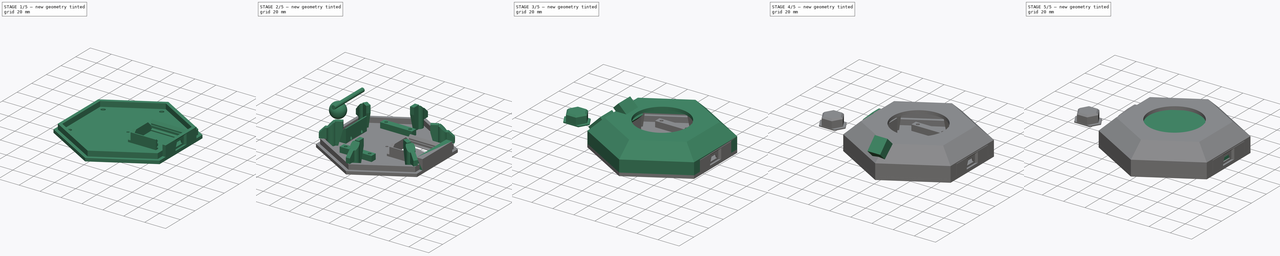
[diagram: build sequence overview — one tinted view per stage of 5, left to right]
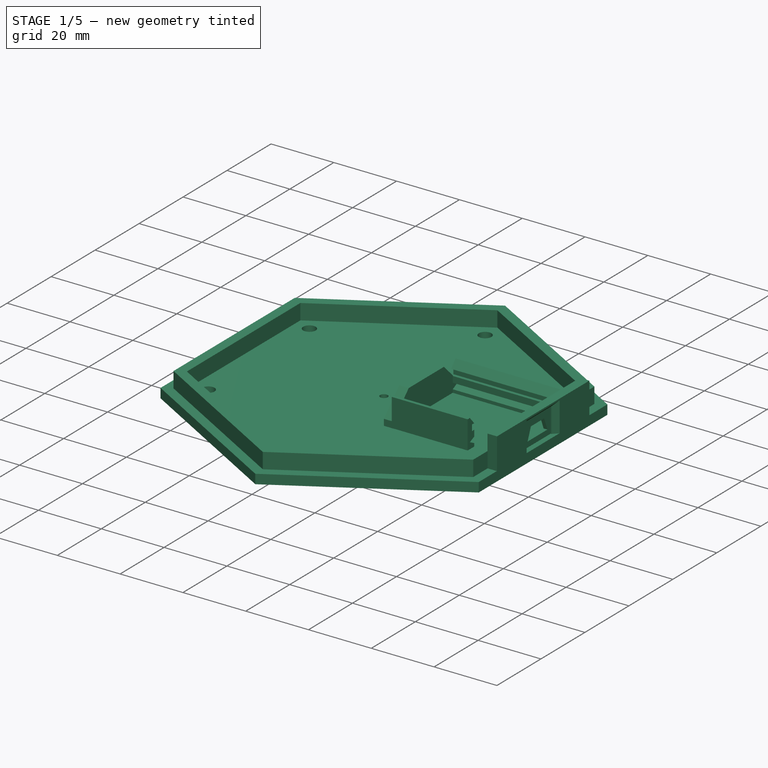
[diagram: stage 1 of 5 — iso view after this stage's code; geometry added in this stage tinted green]
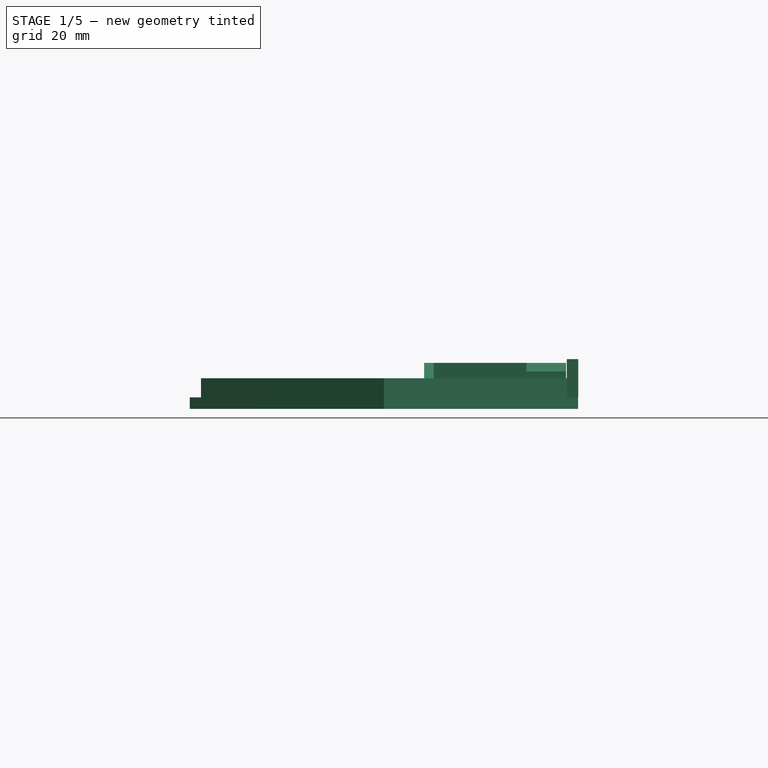
[diagram: stage 1 of 5 — front view after this stage's code; geometry added in this stage tinted green]
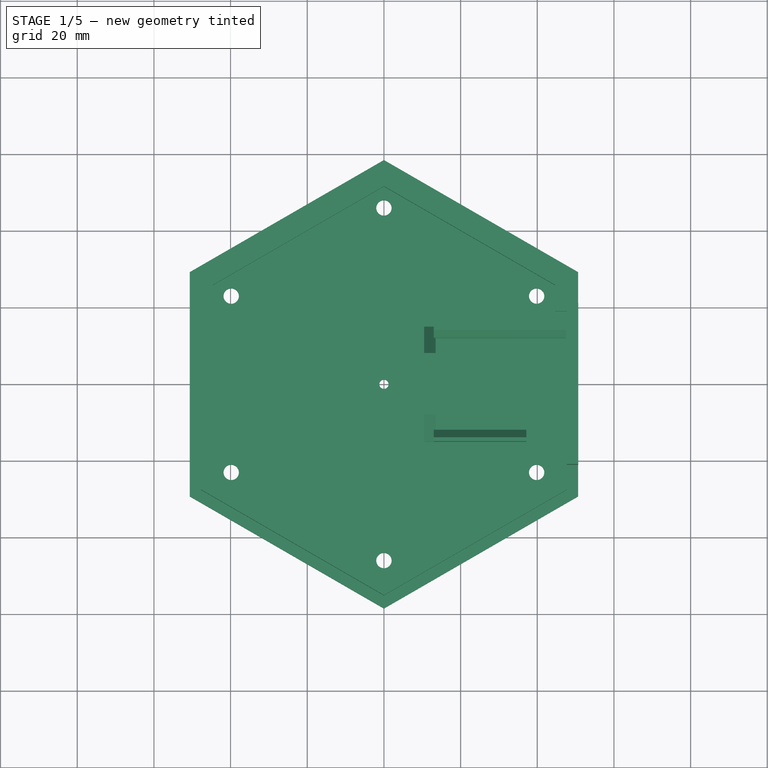
[diagram: stage 1 of 5 — top view after this stage's code; geometry added in this stage tinted green]
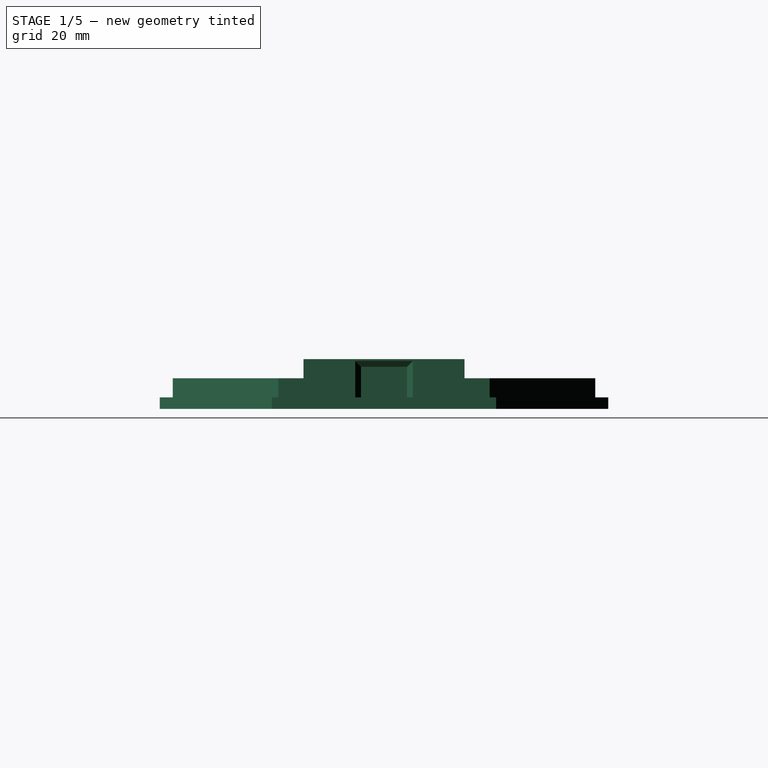
[diagram: stage 1 of 5 — right view after this stage's code; geometry added in this stage tinted green]
FCSTD DOCUMENT  (FreeCAD 0.17R13541 (Git))
Label: sycrolights_base
License: All rights reserved
LicenseURL: http://en.wikipedia.org/wiki/All_rights_reserved
objects: Part::Box×33, Part::Cut×29, Part::MultiFuse×23, Part::Cylinder×18, Part::Chamfer×12, Part::Prism×11, Sketcher::SketchObject×9, PartDesign::Body×9, PartDesign::Pad×8, Part::FeaturePython×6, Part::Thickness×2, Part::Fillet×1, Part::Extrusion×1, Part::Feature×1, Part::Sphere×1
note: 172 computed .brp shape members not serialized (recipe doc carries the construction recipe); baked Part::Feature solids carry a one-line shape summary decoded from their .brp

FEATURE [Sketcher::SketchObject] Sketch002
  MapMode = 5
  Placement = pos=(0,0,0) rot=(0.57735,0.57735,0.57735;2.0944rad)
  Support = -> [YZ_Plane002]
  sketch-geometry (11):
    g0: LineSegment StartX=13 StartY=6.74601 StartZ=0 EndX=13 EndY=4.83955 EndZ=0
    g1: LineSegment StartX=13 StartY=4.83955 StartZ=0 EndX=12 EndY=4.83955 EndZ=0
    g2: LineSegment StartX=12 StartY=4.83955 StartZ=0 EndX=12 EndY=2.88467 EndZ=0
    g3: LineSegment StartX=12 StartY=2.88467 StartZ=0 EndX=14 EndY=1.99839 EndZ=0
    g4: LineSegment StartX=14 StartY=1.99839 StartZ=0 EndX=12 EndY=1 EndZ=0
    g5: LineSegment StartX=12 StartY=1 StartZ=0 EndX=12 EndY=0 EndZ=0
    g6: LineSegment StartX=12 StartY=0 StartZ=0 EndX=15 EndY=0.028037 EndZ=0
    g7: LineSegment StartX=15 StartY=0.028037 StartZ=0 EndX=15 EndY=8.99601 EndZ=0
    g8: LineSegment StartX=15 StartY=8.99601 StartZ=0 EndX=14 EndY=8.99601 EndZ=0
    g9: LineSegment StartX=14 StartY=8.99601 StartZ=0 EndX=12 EndY=6.74601 EndZ=0
    g10: LineSegment StartX=12 StartY=6.74601 StartZ=0 EndX=13 EndY=6.74601 EndZ=0
  constraints (26):
    c: DistanceX(g10,g10) = 1
    c: Coincident(g10,g9)
    c: DistanceX(g-1,g9) = 12
    c: Coincident(g0,g10)
    c: Vertical(g0)
    c: Horizontal(g10)
    c: Coincident(g1,g0)
    c: Coincident(g2,g1)
    c: Horizontal(g1)
    c: DistanceX(g1,g1) = 1
    c: Vertical(g2)
    c: Coincident(g2,g3)
    c: Coincident(g4,g3)
    c: DistanceX(g3,g6) = 1
    c: DistanceX(g5,g6) = 3
    c: Vertical(g7)
    c: Coincident(g7,g8)
    c: Horizontal(g8)
    c: Coincident(g9,g8)
    c: DistanceX(g8,g8) = 1
    c: Coincident(g7,g6)
    c: Coincident(g6,g5)
    c: Vertical(g5)
    c: DistanceX(g0,g8) = 1
    c: Coincident(g5,g4)
    c: DistanceY(g5,g4) = 1
FEATURE [PartDesign::Pad] Pad002
  Length = 34.5
  Length2 = 100
  Placement = pos=(0,0,0) rot=(0.57735,0.57735,0.57735;2.0944rad)
  Profile = -> Sketch002
  Type = 0
FEATURE [PartDesign::Body] Body002
  Group = -> [Sketch002,Pad002]
  Origin = -> Origin002
  Placement = pos=(13,0,0) rot=(0,0,1;0rad)
  Tip = -> Pad002
FEATURE [Part::FeaturePython] Clone  label="Pad003"  # Draft clone (typed FeaturePython)
  AttacherType = Attacher::AttachEngine3D
  Fuse = false
  Objects = -> [Pad002]
  Placement = pos=(13,0,0) rot=(0.57735,0.57735,0.57735;2.0944rad)
  Scale = (-1,1,0.7)
FEATURE [Part::Prism] Prism002  label="tapa"
  AttacherType = Attacher::AttachEngine3D
  Circumradius = 58.5
  Height = 3
  Placement = pos=(0,0,-3) rot=(0,0,1;0.523599rad)
  Polygon = 6
FEATURE [Part::Box] Box008  label="Cubo005"
  AttacherType = Attacher::AttachEngine3D
  Height = 9
  Length = 3
  Placement = pos=(10,-15,0) rot=(0,0,1;0rad)
  Width = 30
FEATURE [Part::Chamfer] Chamfer002  label="tope"
  Base = -> Box008
  Edges = 2 edges r=7: [Edge10,Edge12]
  Placement = pos=(0.5,0,0) rot=(0,0,1;0rad)
FEATURE [Part::Box] Box009  label="Cubo006"
  AttacherType = Attacher::AttachEngine3D
  Height = 10
  Length = 3
  Placement = pos=(47.7,-21,0) rot=(0,0,1;0rad)
  Width = 42
FEATURE [Part::Prism] Prism003  label="tapa001"
  AttacherType = Attacher::AttachEngine3D
  Circumradius = 55.1
  Height = 5
  Placement = pos=(0,0,0) rot=(0,0,1;0.523599rad)
  Polygon = 6
FEATURE [Part::Prism] Prism004  label="tapa002"
  AttacherType = Attacher::AttachEngine3D
  Circumradius = 51.6
  Height = 11
  Placement = pos=(0,0,0) rot=(0,0,1;0.523599rad)
  Polygon = 6
FEATURE [Part::Cut] Cut006
  Base = -> Prism003
  Tool = -> Prism004
FEATURE [Part::Box] Box010  label="Cubo007"
  AttacherType = Attacher::AttachEngine3D
  Height = 10
  Length = 5
  Placement = pos=(43.7,-19,0) rot=(0,0,1;0rad)
  Width = 38
FEATURE [Part::Cut] Cut007  label="reborde1"
  Base = -> Cut006
  Tool = -> Box010
FEATURE [Part::Box] Box012  label="Cubo009"
  AttacherType = Attacher::AttachEngine3D
  Height = 8
  Length = 10
  Placement = pos=(44,-6,0) rot=(0,0,1;0rad)
  Width = 12
FEATURE [Part::Cut] Cut008  label="tapa usb"
  Base = -> Box009
  Tool = -> Box012
FEATURE [Sketcher::SketchObject] Sketch005
  MapMode = 5
  Placement = pos=(0,0,0) rot=(0.57735,0.57735,0.57735;2.0944rad)
  Support = -> [YZ_Plane005]
  sketch-geometry (4):
    g0: LineSegment StartX=-3 StartY=0.536587 StartZ=0 EndX=3 EndY=0.536587 EndZ=0
    g1: LineSegment StartX=3 StartY=0.536587 StartZ=0 EndX=4.5 EndY=-3.26341 EndZ=0
    g2: LineSegment StartX=4.5 StartY=-3.26341 StartZ=0 EndX=-4.5 EndY=-3.26341 EndZ=0
    g3: LineSegment StartX=-4.5 StartY=-3.26341 StartZ=0 EndX=-3 EndY=0.536587 EndZ=0
  constraints (11):
    c: Coincident(g0,g1)
    c: Coincident(g1,g2)
    c: Coincident(g2,g3)
    c: Coincident(g3,g0)
    c: Horizontal(g0)
    c: Horizontal(g2)
    c: Symmetric(g0,g0,g-2)
    c: Symmetric(g2,g1,g-2)
    c: DistanceX(g2,g1) = 9
    c: DistanceX(g0,g0) = 6
    c: DistanceY(g1,g0) = 3.8
FEATURE [PartDesign::Pad] Pad005  label="Pad006"
  Length = 5.62
  Length2 = 100
  Placement = pos=(0,0,0) rot=(0.57735,0.57735,0.57735;2.0944rad)
  Profile = -> Sketch005
  Type = 0
FEATURE [PartDesign::Body] Body005  label="agujero microusb001"
  Group = -> [Sketch005,Pad005]
  Origin = -> Origin005
  Placement = pos=(45.85,0,5) rot=(0,0,1;0rad)
  Tip = -> Pad005
FEATURE [Part::Box] Box014  label="Cubo011"
  AttacherType = Attacher::AttachEngine3D
  Height = 10
  Length = 1.2
  Placement = pos=(47.7,-21,0) rot=(0,0,1;0rad)
  Width = 42
FEATURE [Part::Cut] Cut010
  Base = -> Box014
  Tool = -> Body005
FEATURE [Part::MultiFuse] Fusion003
  Shapes = -> [Cut008,Cut010]
FEATURE [Part::Chamfer] Chamfer  label="tapa usb001"
  Base = -> Fusion003
  Edges = 3 edges r=1.5: [Edge45,Edge46,Edge47]
FEATURE [Part::Cylinder] Cylinder043  label="Cilindro019"
  Angle = 360
  AttacherType = Attacher::AttachEngine3D
  Height = 10
  Placement = pos=(0,0,-6) rot=(0,0,1;0rad)
  Radius = 1.2
FEATURE [Part::Cut] Cut011  label="tapa con agujero pulsaor"
  Base = -> Prism002
  Tool = -> Cylinder043
FEATURE [Part::MultiFuse] Fusion006  label="tapa inferior con reborde"
  Shapes = -> [Cut007,Cut011]
FEATURE [Part::MultiFuse] Fusion008  label="soporte wemos"
  Shapes = -> [Body002,Clone,Chamfer002]
FEATURE [Part::Box] Box027  label="Cubo023"
  AttacherType = Attacher::AttachEngine3D
  Height = 2.5
  Length = 11
  Placement = pos=(37.5,-11,4.5) rot=(0,0,1;0rad)
  Width = 7
FEATURE [Part::Box] Box028  label="Cubo024"
  AttacherType = Attacher::AttachEngine3D
  Height = 2.5
  Length = 11
  Placement = pos=(37.5,4,4.5) rot=(0,0,1;0rad)
  Width = 9.5
FEATURE [Part::MultiFuse] Fusion009
  Shapes = -> [Box027,Box028]
FEATURE [Part::Cut] Cut013  label="tapa usb002"
  Base = -> Chamfer
  Tool = -> Fusion009
FEATURE [Part::Cylinder] Cylinder050  label="Cilindro026"
  Angle = 360
  AttacherType = Attacher::AttachEngine3D
  Height = 21
  Placement = pos=(0,-46,-8) rot=(0,0,1;0rad)
  Radius = 2
FEATURE [Part::FeaturePython] Array002  label="agujeros tornillos tapa inferior"  # Draft array (typed FeaturePython)
  Angle = 360
  ArrayType = 1
  Axis = (0,0,1)
  Base = -> Cylinder050
  Center = (0,0,0)
  Fuse = false
  IntervalAxis = (0,0,0)
  IntervalX = (1,0,0)
  IntervalY = (0,1,0)
  IntervalZ = (0,0,0)
  NumberPolar = 6
  NumberX = 2
  NumberY = 2
  NumberZ = 1
FEATURE [Part::Cut] Cut021  label="tapa inferior con agujeros tornillos"
  Base = -> Fusion006
  Tool = -> Array002
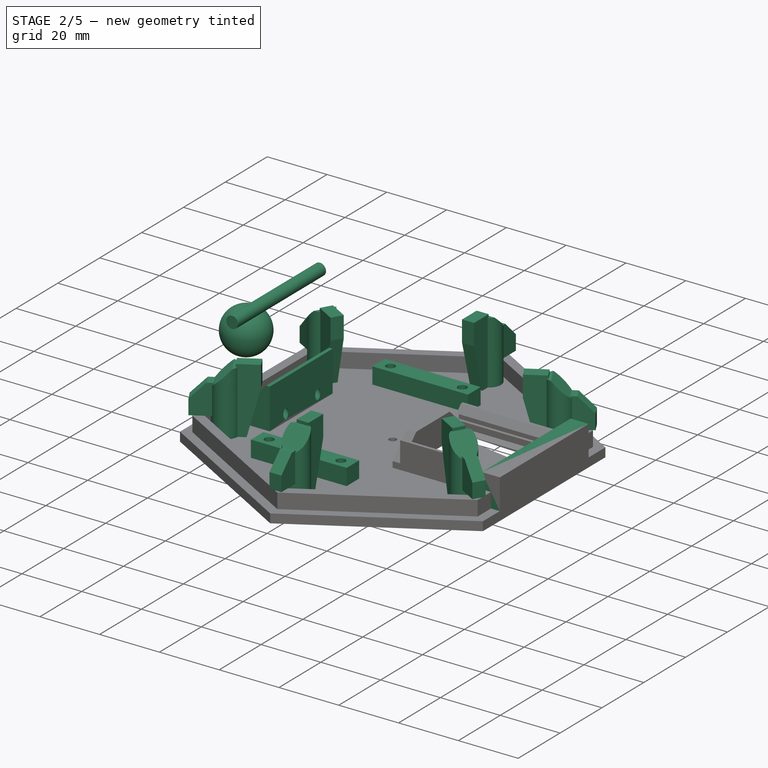
[diagram: stage 2 of 5 — iso view after this stage's code; geometry added in this stage tinted green]
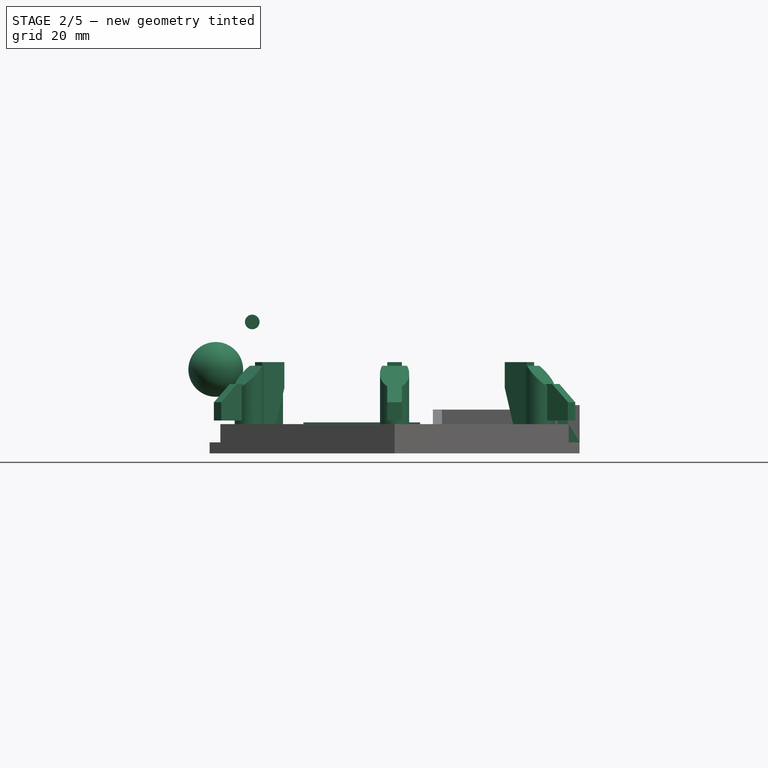
[diagram: stage 2 of 5 — front view after this stage's code; geometry added in this stage tinted green]
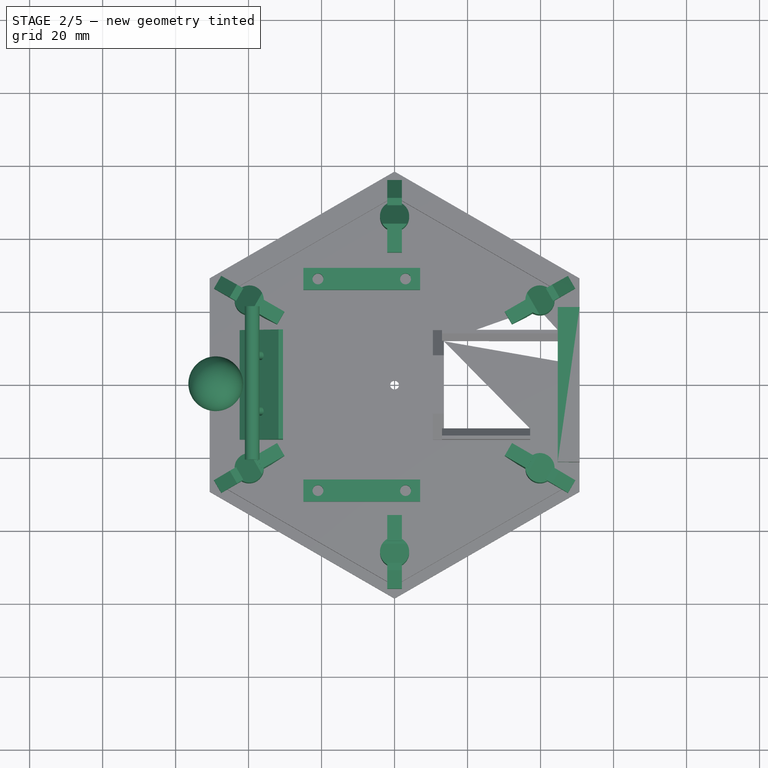
[diagram: stage 2 of 5 — top view after this stage's code; geometry added in this stage tinted green]
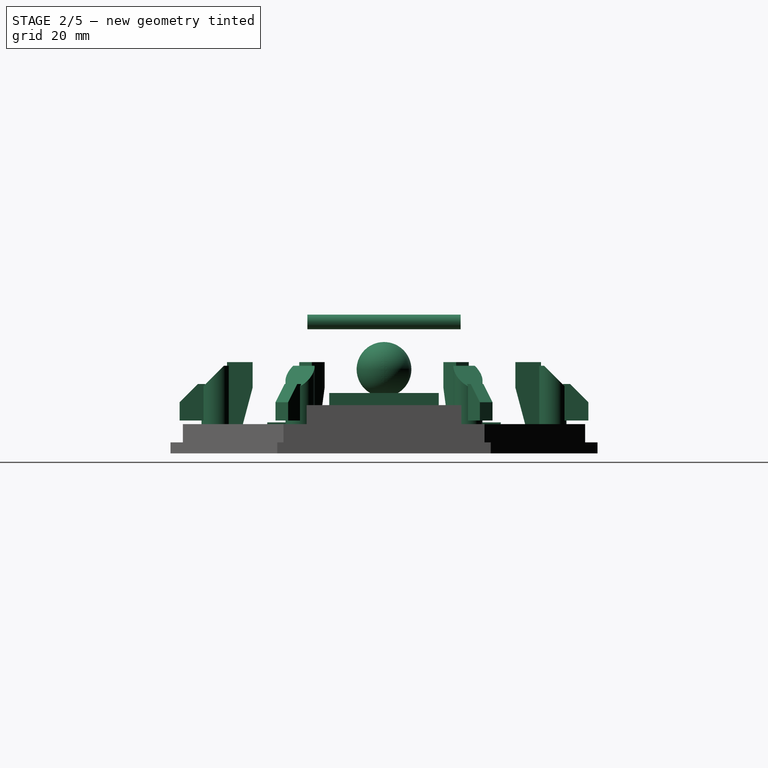
[diagram: stage 2 of 5 — right view after this stage's code; geometry added in this stage tinted green]
FEATURE [Sketcher::SketchObject] Sketch006
  MapMode = 5
  Placement = pos=(0,0,0) rot=(1,0,0;1.5708rad)
  Support = -> [XZ_Plane006]
  sketch-geometry (5):
    g0: LineSegment StartX=-43.9497 StartY=0 StartZ=0 EndX=-43.9497 EndY=2.87613 EndZ=0
    g1: LineSegment StartX=-43.9497 StartY=2.87613 StartZ=0 EndX=-33.298 EndY=13.5279 EndZ=0
    g2: LineSegment StartX=-33.298 StartY=13.5279 StartZ=0 EndX=-32.0837 EndY=13.5279 EndZ=0
    g3: LineSegment StartX=-32.0837 StartY=13.5279 StartZ=0 EndX=-32.0837 EndY=0 EndZ=0
    g4: LineSegment StartX=-32.0837 StartY=0 StartZ=0 EndX=-43.9497 EndY=0 EndZ=0
  constraints (11):
    c: Vertical(g0)
    c: Coincident(g0,g1)
    c: Coincident(g1,g2)
    c: Horizontal(g2)
    c: Coincident(g2,g3)
    c: Vertical(g3)
    c: Coincident(g3,g4)
    c: Coincident(g4,g0)
    c: Horizontal(g4)
    c: PointOnObject(g0,g-1)
    c: Angle(g0,g1) = 2.35619
FEATURE [PartDesign::Body] Body006
  Group = -> [Sketch006]
  Origin = -> Origin006
FEATURE [Part::Extrusion] Extrude  label="soporte pulsador"
  Base = -> Sketch006
  Dir = (0,-1,0)
  DirMode = 2
  FaceMakerClass = Part::FaceMakerBullseye
  LengthFwd = 30
  LengthRev = 0
  Placement = pos=(0,15,0) rot=(0,0,1;0rad)
  Solid = true
  Symmetric = false
FEATURE [Part::Cylinder] Cylinder044  label="Cilindro020"
  Angle = 360
  AttacherType = Attacher::AttachEngine3D
  Height = 30
  Radius = 1.2
FEATURE [Part::Cylinder] Cylinder045  label="Cilindro021"
  Angle = 360
  AttacherType = Attacher::AttachEngine3D
  Height = 30
  Placement = pos=(0,15.24,0) rot=(0,0,1;0rad)
  Radius = 1.2
FEATURE [Part::MultiFuse] Fusion007
  Placement = pos=(-24.62,-7.35,-5) rot=(0,-1,0;0.785398rad)
  Shapes = -> [Cylinder045,Cylinder044]
FEATURE [Part::Cut] Cut012  label="soporte pulsador con agujeros"
  Base = -> Extrude
  Placement = pos=(1.5,0,0) rot=(0,0,1;0rad)
  Tool = -> Fusion007
FEATURE [Part::Box] Box037  label="Cubo033"
  AttacherType = Attacher::AttachEngine3D
  Height = 5.5
  Length = 32
  Placement = pos=(-22,-32,0) rot=(0,0,1;0rad)
  Width = 6
FEATURE [Part::Cylinder] Cylinder048  label="Cilindro024"
  Angle = 360
  AttacherType = Attacher::AttachEngine3D
  Height = 10
  Placement = pos=(-18,-29,0) rot=(0,0,1;0rad)
  Radius = 1.5
FEATURE [Part::Cylinder] Cylinder049  label="Cilindro025"
  Angle = 360
  AttacherType = Attacher::AttachEngine3D
  Height = 10
  Placement = pos=(6,-29,0) rot=(0,0,1;0rad)
  Radius = 1.5
FEATURE [Part::MultiFuse] Fusion017
  Shapes = -> [Cylinder048,Cylinder049]
FEATURE [Part::Cut] Cut020
  Base = -> Box037
  Placement = pos=(-3,0,0) rot=(0,0,1;0rad)
  Tool = -> Fusion017
FEATURE [Part::MultiFuse] Fusion018
  Shapes = -> [Cut021,Cut012,Fusion008,Cut013]
FEATURE [Part::Cylinder] Cylinder053  label="bisagra (eliminado)001"
  Angle = 360
  AttacherType = Attacher::AttachEngine3D
  Height = 42
  Placement = pos=(-39,21,33) rot=(1,0,0;1.5708rad)
  Radius = 2
FEATURE [Part::Box] Box038  label="Cubo034"
  AttacherType = Attacher::AttachEngine3D
  Height = 10.2
  Length = 6
  Placement = pos=(44.7,-21.2,0) rot=(0,0,1;0rad)
  Width = 42.4
FEATURE [Part::Cylinder] Cylinder054  label="Cilindro027"
  Angle = 360
  AttacherType = Attacher::AttachEngine3D
  Height = 21
  Placement = pos=(0,-46,0) rot=(0,0,1;0rad)
  Radius = 4
FEATURE [Part::Box] Box039  label="Cubo035"
  AttacherType = Attacher::AttachEngine3D
  Height = 14
  Length = 12
  Placement = pos=(-7,-59,20) rot=(-1,0,0;0.785398rad)
  Width = 10
FEATURE [Part::Cut] Cut027
  Base = -> Cylinder054
  Tool = -> Box039
FEATURE [Part::Box] Box040  label="Cubo036"
  AttacherType = Attacher::AttachEngine3D
  Height = 22
  Length = 4
  Placement = pos=(-2,-43,0) rot=(0,0,1;0rad)
  Width = 7
FEATURE [Part::Chamfer] Chamfer009
  Base = -> Box040
  Edges = 1 edges: [Edge11 r1=15 r2=4]
FEATURE [Part::Box] Box041  label="Cubo037"
  AttacherType = Attacher::AttachEngine3D
  Height = 10
  Length = 4
  Placement = pos=(-2,-56,6) rot=(0,0,1;0rad)
  Width = 7
FEATURE [Part::Chamfer] Chamfer010
  Base = -> Box041
  Edges = 1 edges r=5: [Edge10]
FEATURE [Part::Cylinder] Cylinder055  label="Cilindro028"
  Angle = 360
  AttacherType = Attacher::AttachEngine3D
  Height = 15
  Placement = pos=(0,-46,0) rot=(0,0,1;0rad)
  Radius = 1.5
FEATURE [Part::MultiFuse] Fusion020
  Shapes = -> [Chamfer010,Chamfer009,Cut027]
FEATURE [Part::Cut] Cut028  label="tornillo001"
  Base = -> Fusion020
  Tool = -> Cylinder055
FEATURE [Part::FeaturePython] Array003  label="soportes tornillos001"  # Draft array (typed FeaturePython)
  Angle = 360
  ArrayType = 1
  Axis = (0,0,1)
  Base = -> Cut028
  Center = (0,0,0)
  Fuse = false
  IntervalAxis = (0,0,0)
  IntervalX = (1,0,0)
  IntervalY = (0,1,0)
  IntervalZ = (0,0,0)
  NumberPolar = 6
  NumberX = 2
  NumberY = 2
  NumberZ = 1
FEATURE [Part::Sphere] Sphere  label="Esfera"
  Angle1 = -90
  Angle2 = 90
  Angle3 = 360
  AttacherType = Attacher::AttachEngine3D
  Placement = pos=(-49,0,20) rot=(0,0,1;0rad)
  Radius = 7.5
FEATURE [Part::FeaturePython] Clone001  label="Cut030"  # Draft clone (typed FeaturePython)
  AttacherType = Attacher::AttachEngine3D
  Fuse = false
  Objects = -> [Cut020]
  Placement = pos=(-3,58,0) rot=(0,0,1;0rad)
  Scale = (1,1,1)
FEATURE [Part::MultiFuse] Fusion022  label="soporte plaqueta"
  Shapes = -> [Clone001,Cut020]
FEATURE [Part::Chamfer] Chamfer011
  Base = -> Fusion018
  Edges = 6 edges r=2.5: [Edge18,Edge20,Edge21,Edge22,Edge23,Edge24]
FEATURE [Part::MultiFuse] Fusion023  label="inferior final"
  Shapes = -> [Fusion022,Chamfer011]
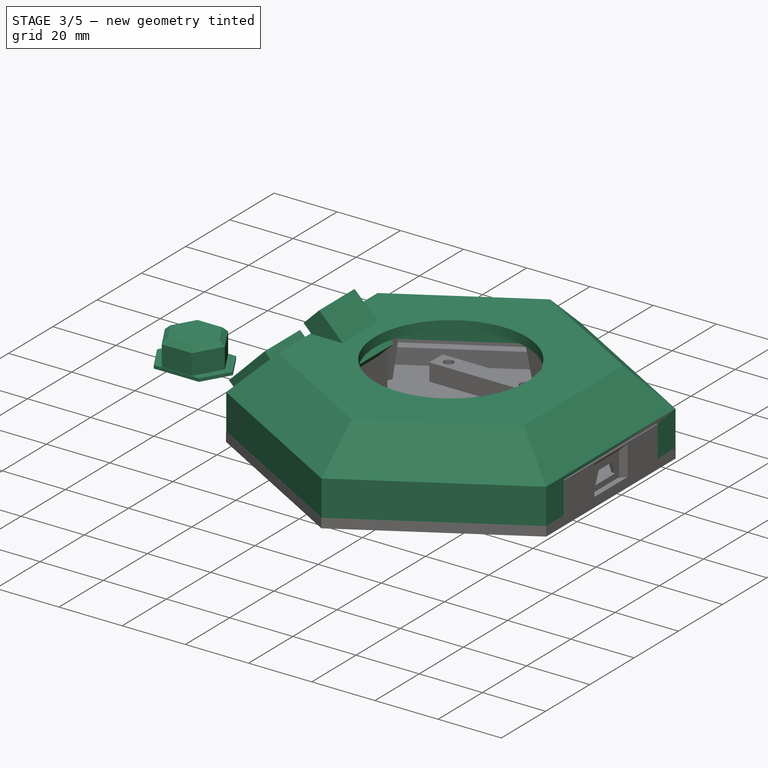
[diagram: stage 3 of 5 — iso view after this stage's code; geometry added in this stage tinted green]
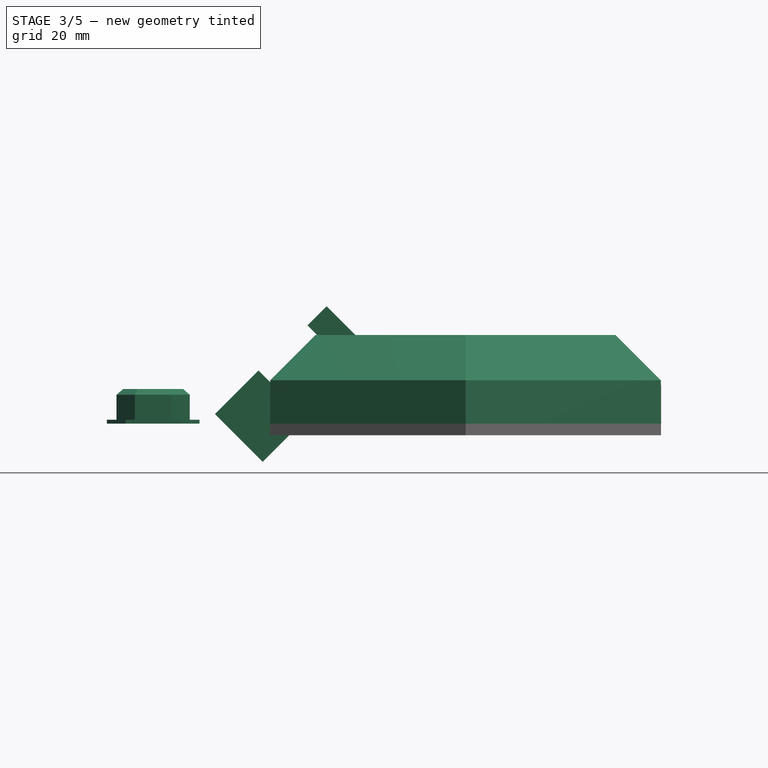
[diagram: stage 3 of 5 — front view after this stage's code; geometry added in this stage tinted green]
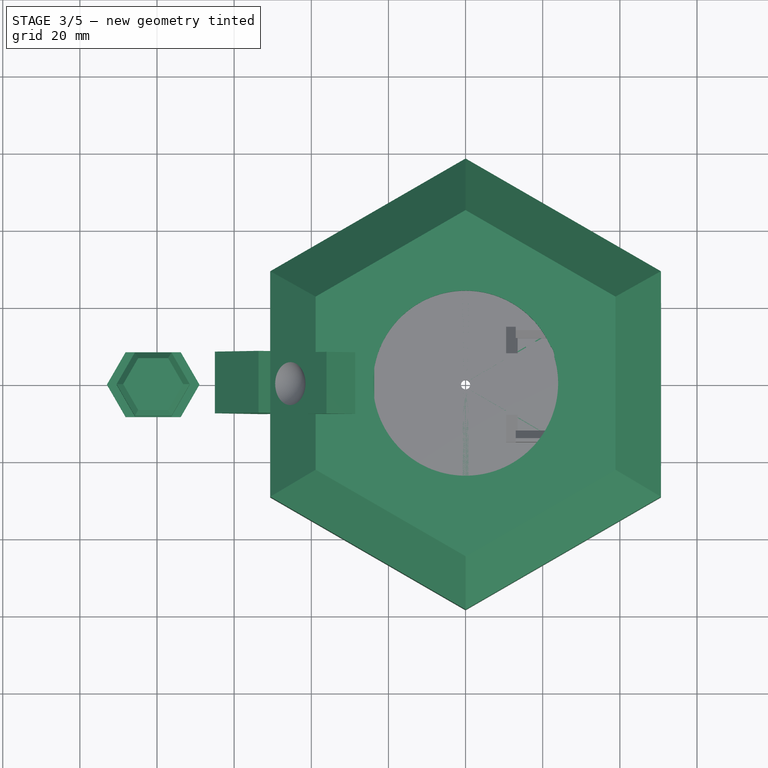
[diagram: stage 3 of 5 — top view after this stage's code; geometry added in this stage tinted green]
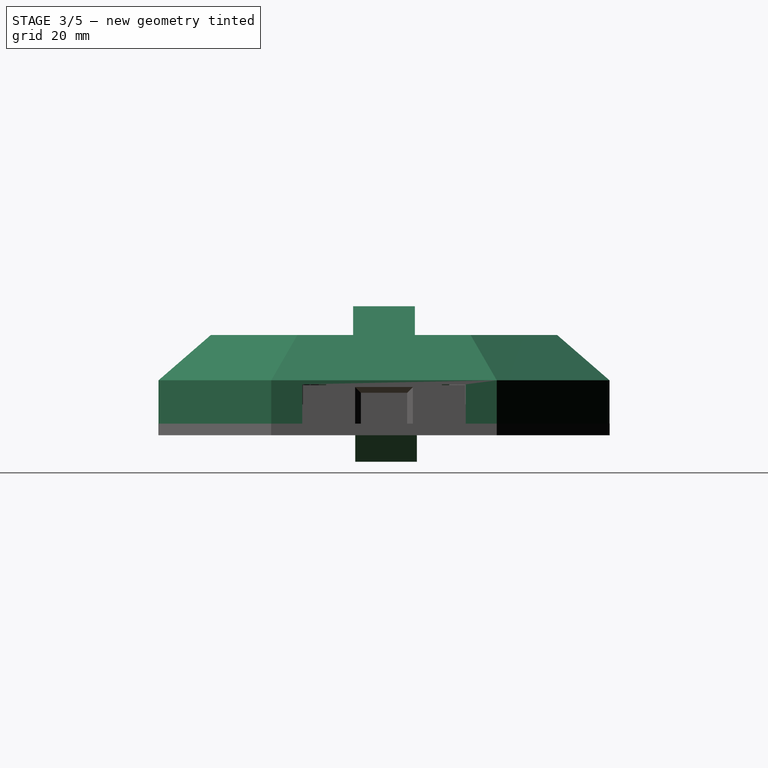
[diagram: stage 3 of 5 — right view after this stage's code; geometry added in this stage tinted green]
FEATURE [Part::Box] Box033  label="Cubo029"
  AttacherType = Attacher::AttachEngine3D
  Height = 7
  Length = 17.5
  Placement = pos=(-41,-8,25.5) rot=(0,1,0;0.785398rad)
  Width = 16
FEATURE [Part::Box] Box034  label="Cubo030"
  AttacherType = Attacher::AttachEngine3D
  Height = 16
  Length = 17.5
  Placement = pos=(-65,-7.46556,2.49185) rot=(0,1,0;0.785398rad)
  Width = 16
FEATURE [Part::MultiFuse] Fusion013
  Shapes = -> [Box034,Box033]
FEATURE [Part::Prism] Prism009  label="Prisma006"
  AttacherType = Attacher::AttachEngine3D
  Circumradius = 9.5
  Height = 9
  Polygon = 6
FEATURE [Part::Prism] Prism010  label="Prisma007"
  AttacherType = Attacher::AttachEngine3D
  Circumradius = 12
  Height = 1
  Polygon = 6
FEATURE [Part::Prism] Prism011  label="Prisma008"
  AttacherType = Attacher::AttachEngine3D
  Circumradius = 7.5
  Height = 2
  Polygon = 6
FEATURE [Part::MultiFuse] Fusion015
  Shapes = -> [Prism009,Prism010]
FEATURE [Part::Cut] Cut018
  Base = -> Fusion015
  Placement = pos=(-81,0,0) rot=(0,0,1;0rad)
  Tool = -> Prism011
FEATURE [Part::Box] Box035  label="Cubo031"
  AttacherType = Attacher::AttachEngine3D
  Height = 10
  Length = 26
  Placement = pos=(-95,8.4,0) rot=(0,0,1;0rad)
  Width = 10
FEATURE [Part::Box] Box036  label="Cubo032"
  AttacherType = Attacher::AttachEngine3D
  Height = 10
  Length = 26
  Placement = pos=(-95,-18.4,0) rot=(0,0,1;0rad)
  Width = 10
FEATURE [Part::MultiFuse] Fusion016
  Shapes = -> [Box035,Box036]
FEATURE [Part::Cut] Cut019
  Base = -> Cut018
  Tool = -> Fusion016
FEATURE [Part::Chamfer] Chamfer006
  Base = -> Cut019
  Edges = 6 edges r=1.5: [Edge50,Edge52,Edge55,Edge56,Edge59,Edge60]
FEATURE [Part::Chamfer] Chamfer007  label="tapa inferior con chanfler tornillos"
  Base = -> Cut021
  Edges = 6 edges r=2.5: [Edge14,Edge16,Edge17,Edge18,Edge19,Edge20]
FEATURE [Part::Prism] Prism012  label="Prisma009"
  AttacherType = Attacher::AttachEngine3D
  Circumradius = 55
  Height = 20
  Placement = pos=(0,0,0) rot=(0,0,1;0.523599rad)
  Polygon = 6
FEATURE [Part::Chamfer] Chamfer008
  Base = -> Prism012
  Edges = 6 edges r=10: [Edge4,Edge7,Edge10,Edge13,Edge16,Edge18]
FEATURE [Part::Thickness] Thickness001
  Faces = -> Chamfer008 [Face4]
  Intersection = false
  Join = 2
  Mode = 0
  SelfIntersection = false
  Value = 3
FEATURE [Sketcher::SketchObject] Sketch007
  MapMode = 5
  Placement = pos=(0,0,0) rot=(0.57735,0.57735,0.57735;2.0944rad)
  Support = -> [YZ_Plane007]
  sketch-geometry (4):
    g0: LineSegment StartX=-3 StartY=0.536587 StartZ=0 EndX=3 EndY=0.536587 EndZ=0
    g1: LineSegment StartX=3 StartY=0.536587 StartZ=0 EndX=4.5 EndY=-3.26341 EndZ=0
    g2: LineSegment StartX=4.5 StartY=-3.26341 StartZ=0 EndX=-4.5 EndY=-3.26341 EndZ=0
    g3: LineSegment StartX=-4.5 StartY=-3.26341 StartZ=0 EndX=-3 EndY=0.536587 EndZ=0
  constraints (11):
    c: Coincident(g0,g1)
    c: Coincident(g1,g2)
    c: Coincident(g2,g3)
    c: Coincident(g3,g0)
    c: Horizontal(g0)
    c: Horizontal(g2)
    c: Symmetric(g0,g0,g-2)
    c: Symmetric(g2,g1,g-2)
    c: DistanceX(g2,g1) = 9
    c: DistanceX(g0,g0) = 6
    c: DistanceY(g1,g0) = 3.8
FEATURE [PartDesign::Pad] Pad006  label="Pad007"
  Length = 5.62
  Length2 = 100
  Placement = pos=(0,0,0) rot=(0.57735,0.57735,0.57735;2.0944rad)
  Profile = -> Sketch007
  Type = 0
FEATURE [PartDesign::Body] Body007  label="agujero microusb002"
  Group = -> [Sketch007,Pad006]
  Origin = -> Origin007
  Placement = pos=(45.85,0,5) rot=(0,0,1;0rad)
  Tip = -> Pad006
FEATURE [Part::Cut] Cut022
  Base = -> Thickness001
  Tool = -> Body007
FEATURE [Part::Cylinder] Cylinder051  label="agujero led builtin001"
  Angle = 360
  AttacherType = Attacher::AttachEngine3D
  Height = 44
  Placement = pos=(19,7,0) rot=(0,0,1;0rad)
  Radius = 4
FEATURE [Part::Cylinder] Cylinder052  label="agujero cables001"
  Angle = 360
  AttacherType = Attacher::AttachEngine3D
  Height = 44
  Radius = 24
FEATURE [Part::MultiFuse] Fusion019
  Shapes = -> [Cylinder052,Cylinder051]
FEATURE [Part::Cut] Cut023  label="con agujeros001"
  Base = -> Cut022
  Tool = -> Fusion019
FEATURE [Sketcher::SketchObject] Sketch008
  MapMode = 5
  Support = -> [XY_Plane008]
  sketch-geometry (7):
    g0: LineSegment StartX=-40.8761 StartY=10 StartZ=0 EndX=-49.5363 EndY=5 EndZ=0
    g1: LineSegment StartX=-49.5363 StartY=5 StartZ=0 EndX=-49.5363 EndY=-5 EndZ=0
    g2: LineSegment StartX=-49.5363 StartY=-5 StartZ=0 EndX=-40.8761 EndY=-10 EndZ=0
    g3: LineSegment StartX=-40.8761 StartY=-10 StartZ=0 EndX=-32.2158 EndY=-5 EndZ=0
    g4: LineSegment StartX=-32.2158 StartY=-5 StartZ=0 EndX=-32.2158 EndY=5 EndZ=0
    g5: LineSegment StartX=-32.2158 StartY=5 StartZ=0 EndX=-40.8761 EndY=10 EndZ=0
    g6: Circle [constr] CenterX=-40.8761 CenterY=0 CenterZ=0 NormalX=0 NormalY=0 NormalZ=1 AngleXU=0 Radius=10
  constraints (16):
    c: Coincident(g0,g1)
    c: Coincident(g1,g2)
    c: Coincident(g2,g3)
    c: Coincident(g3,g4)
    c: Coincident(g4,g5)
    c: Coincident(g5,g0)
    c: Equal(g0, g1-g5) x5
    c: PointOnObject(g0,g6)
    c: PointOnObject(g1,g6)
    c: PointOnObject(g2,g6)
    c: PointOnObject(g3,g6)
    c: PointOnObject(g4,g6)
    c: PointOnObject(g5,g6)
    c: PointOnObject(g6,g-1)
    c: Vertical(g1)
    c: Radius(g6) = 10
FEATURE [PartDesign::Pad] Pad007  label="Pad008"
  Length = 37
  Length2 = 100
  Profile = -> Sketch008
  Type = 0
FEATURE [PartDesign::Body] Body008  label="recorte boton viejo (eliminado)001"
  Group = -> [Sketch008,Pad007]
  Origin = -> Origin008
  Placement = pos=(0,0,103) rot=(0,-1,0;0.785398rad)
  Tip = -> Pad007
FEATURE [Part::Cut] Cut024
  Base = -> Cut023
  Tool = -> Body008
FEATURE [Part::Cut] Cut025  label="forma completa001"
  Base = -> Cut024
  Tool = -> Cylinder053
FEATURE [Part::Cut] Cut026  label="superior001"
  Base = -> Cut025
  Tool = -> Box038
FEATURE [Part::MultiFuse] Fusion021  label="tapa superior sin agujero boton"
  Shapes = -> [Array003,Cut026]
FEATURE [Part::Cut] Cut029  label="superior final"
  Base = -> Fusion021
  Tool = -> Sphere
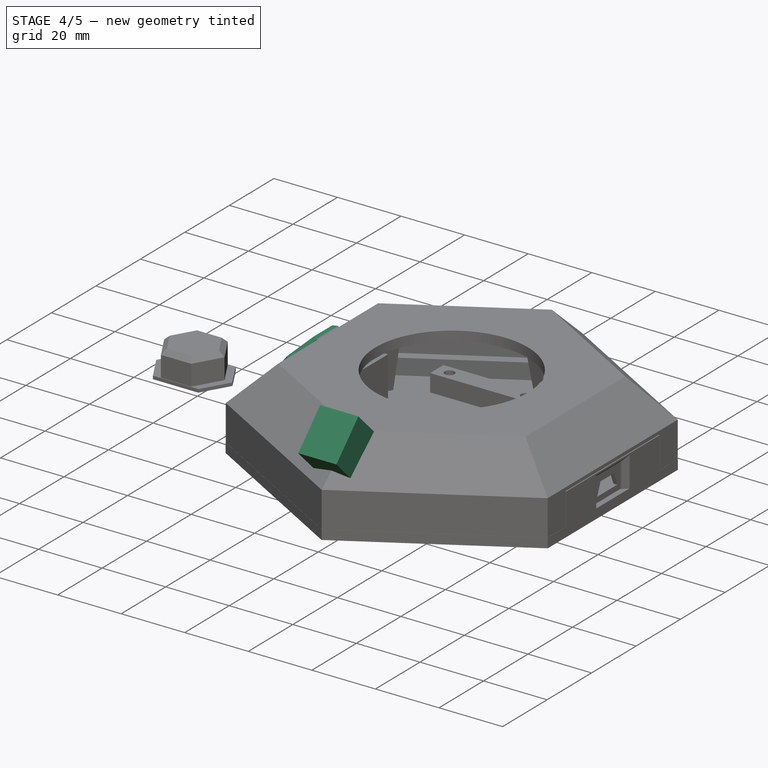
[diagram: stage 4 of 5 — iso view after this stage's code; geometry added in this stage tinted green]
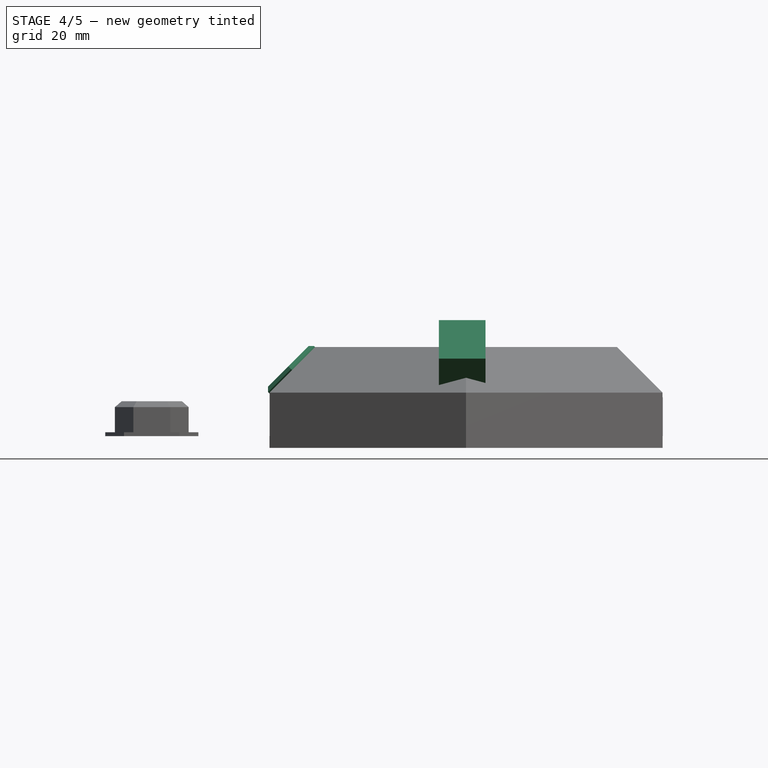
[diagram: stage 4 of 5 — front view after this stage's code; geometry added in this stage tinted green]
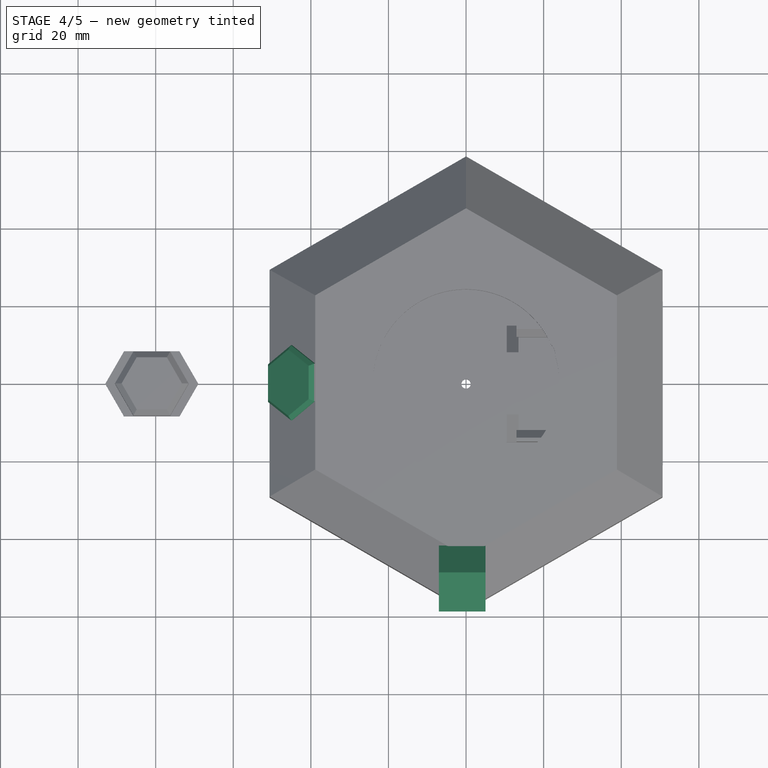
[diagram: stage 4 of 5 — top view after this stage's code; geometry added in this stage tinted green]
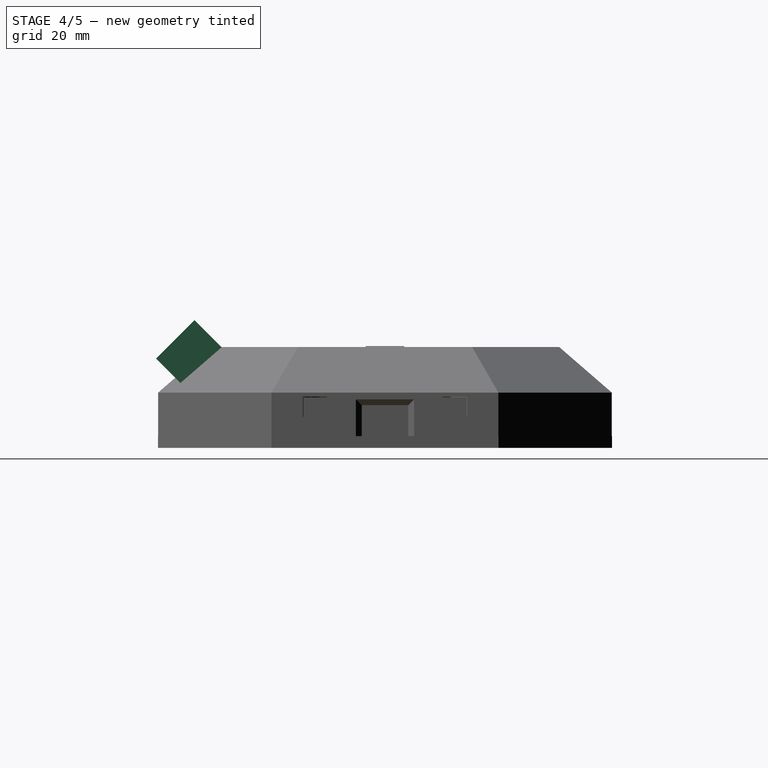
[diagram: stage 4 of 5 — right view after this stage's code; geometry added in this stage tinted green]
FEATURE [Part::Prism] Prism  label="Prisma"
  AttacherType = Attacher::AttachEngine3D
  Circumradius = 55
  Height = 20
  Placement = pos=(0,0,0) rot=(0,0,1;0.523599rad)
  Polygon = 6
FEATURE [Part::Chamfer] Chamfer001
  Base = -> Prism
  Edges = 6 edges r=10: [Edge4,Edge7,Edge10,Edge13,Edge16,Edge18]
FEATURE [Part::Thickness] Thickness
  Faces = -> Chamfer001 [Face4]
  Intersection = false
  Join = 2
  Mode = 0
  SelfIntersection = false
  Value = 3
FEATURE [Sketcher::SketchObject] Sketch003
  MapMode = 5
  Placement = pos=(0,0,0) rot=(0.57735,0.57735,0.57735;2.0944rad)
  Support = -> [YZ_Plane003]
  sketch-geometry (4):
    g0: LineSegment StartX=-3 StartY=0.536587 StartZ=0 EndX=3 EndY=0.536587 EndZ=0
    g1: LineSegment StartX=3 StartY=0.536587 StartZ=0 EndX=4.5 EndY=-3.26341 EndZ=0
    g2: LineSegment StartX=4.5 StartY=-3.26341 StartZ=0 EndX=-4.5 EndY=-3.26341 EndZ=0
    g3: LineSegment StartX=-4.5 StartY=-3.26341 StartZ=0 EndX=-3 EndY=0.536587 EndZ=0
  constraints (11):
    c: Coincident(g0,g1)
    c: Coincident(g1,g2)
    c: Coincident(g2,g3)
    c: Coincident(g3,g0)
    c: Horizontal(g0)
    c: Horizontal(g2)
    c: Symmetric(g0,g0,g-2)
    c: Symmetric(g2,g1,g-2)
    c: DistanceX(g2,g1) = 9
    c: DistanceX(g0,g0) = 6
    c: DistanceY(g1,g0) = 3.8
FEATURE [PartDesign::Pad] Pad003  label="Pad004"
  Length = 5.62
  Length2 = 100
  Placement = pos=(0,0,0) rot=(0.57735,0.57735,0.57735;2.0944rad)
  Profile = -> Sketch003
  Type = 0
FEATURE [PartDesign::Body] Body003  label="agujero microusb"
  Group = -> [Sketch003,Pad003]
  Origin = -> Origin003
  Placement = pos=(45.85,0,5) rot=(0,0,1;0rad)
  Tip = -> Pad003
FEATURE [Part::Cut] Cut001
  Base = -> Thickness
  Tool = -> Body003
FEATURE [Part::Cylinder] Cylinder001  label="agujero led builtin"
  Angle = 360
  AttacherType = Attacher::AttachEngine3D
  Height = 44
  Placement = pos=(19,7,0) rot=(0,0,1;0rad)
  Radius = 4
FEATURE [Part::Cylinder] Cylinder002  label="agujero cables"
  Angle = 360
  AttacherType = Attacher::AttachEngine3D
  Height = 44
  Radius = 24
FEATURE [Part::MultiFuse] Fusion002
  Shapes = -> [Cylinder002,Cylinder001]
FEATURE [Part::Cut] Cut002  label="con agujeros"
  Base = -> Cut001
  Tool = -> Fusion002
FEATURE [Sketcher::SketchObject] Sketch004
  MapMode = 5
  Support = -> [XY_Plane004]
  sketch-geometry (7):
    g0: LineSegment StartX=-40.8761 StartY=10 StartZ=0 EndX=-49.5363 EndY=5 EndZ=0
    g1: LineSegment StartX=-49.5363 StartY=5 StartZ=0 EndX=-49.5363 EndY=-5 EndZ=0
    g2: LineSegment StartX=-49.5363 StartY=-5 StartZ=0 EndX=-40.8761 EndY=-10 EndZ=0
    g3: LineSegment StartX=-40.8761 StartY=-10 StartZ=0 EndX=-32.2158 EndY=-5 EndZ=0
    g4: LineSegment StartX=-32.2158 StartY=-5 StartZ=0 EndX=-32.2158 EndY=5 EndZ=0
    g5: LineSegment StartX=-32.2158 StartY=5 StartZ=0 EndX=-40.8761 EndY=10 EndZ=0
    g6: Circle [constr] CenterX=-40.8761 CenterY=0 CenterZ=0 NormalX=0 NormalY=0 NormalZ=1 AngleXU=0 Radius=10
  constraints (16):
    c: Coincident(g0,g1)
    c: Coincident(g1,g2)
    c: Coincident(g2,g3)
    c: Coincident(g3,g4)
    c: Coincident(g4,g5)
    c: Coincident(g5,g0)
    c: Equal(g0, g1-g5) x5
    c: PointOnObject(g0,g6)
    c: PointOnObject(g1,g6)
    c: PointOnObject(g2,g6)
    c: PointOnObject(g3,g6)
    c: PointOnObject(g4,g6)
    c: PointOnObject(g5,g6)
    c: PointOnObject(g6,g-1)
    c: Vertical(g1)
    c: Radius(g6) = 10
FEATURE [PartDesign::Pad] Pad004  label="Pad005"
  Length = 37
  Length2 = 100
  Profile = -> Sketch004
  Type = 0
FEATURE [PartDesign::Body] Body004  label="recorte boton viejo (eliminado)"
  Group = -> [Sketch004,Pad004]
  Origin = -> Origin004
  Placement = pos=(0,0,103) rot=(0,-1,0;0.785398rad)
  Tip = -> Pad004
FEATURE [Part::Cut] Cut004
  Base = -> Cut002
  Tool = -> Body004
FEATURE [Part::Cylinder] Cylinder004  label="bisagra (eliminado)"
  Angle = 360
  AttacherType = Attacher::AttachEngine3D
  Height = 42
  Placement = pos=(-39,21,33) rot=(1,0,0;1.5708rad)
  Radius = 2
FEATURE [Part::Cut] Cut005  label="forma completa"
  Base = -> Cut004
  Tool = -> Cylinder004
FEATURE [Part::Box] Box013  label="Cubo010"
  AttacherType = Attacher::AttachEngine3D
  Height = 10.2
  Length = 6
  Placement = pos=(44.7,-21.2,0) rot=(0,0,1;0rad)
  Width = 42.4
FEATURE [Part::Cut] Cut009  label="superior"
  Base = -> Cut005
  Tool = -> Box013
FEATURE [Part::Cylinder] Cylinder046  label="Cilindro022"
  Angle = 360
  AttacherType = Attacher::AttachEngine3D
  Height = 21
  Placement = pos=(0,-46,0) rot=(0,0,1;0rad)
  Radius = 4
FEATURE [Part::Box] Box029  label="Cubo025"
  AttacherType = Attacher::AttachEngine3D
  Height = 14
  Length = 12
  Placement = pos=(-7,-59,20) rot=(-1,0,0;0.785398rad)
  Width = 10
FEATURE [Part::Box] Box030  label="Cubo026"
  AttacherType = Attacher::AttachEngine3D
  Height = 22
  Length = 4
  Placement = pos=(-2,-43,0) rot=(0,0,1;0rad)
  Width = 7
FEATURE [Part::Chamfer] Chamfer003
  Base = -> Box030
  Edges = 1 edges: [Edge11 r1=15 r2=4]
FEATURE [Part::Box] Box031  label="Cubo027"
  AttacherType = Attacher::AttachEngine3D
  Height = 10
  Length = 4
  Placement = pos=(-2,-56,6) rot=(0,0,1;0rad)
  Width = 7
FEATURE [Part::Chamfer] Chamfer004
  Base = -> Box031
  Edges = 1 edges r=5: [Edge10]
FEATURE [Part::Prism] Prism005  label="agujero hexagonal boton"
  AttacherType = Attacher::AttachEngine3D
  Circumradius = 10
  Height = 23
  Placement = pos=(-45.8,0,18) rot=(0.257344,0.960422,0.106596;2.38435rad)
  Polygon = 6
FEATURE [Part::Prism] Prism006  label="Prisma003"
  AttacherType = Attacher::AttachEngine3D
  Circumradius = 12
  Height = 5
  Placement = pos=(-44.8,0,17) rot=(0.257344,0.960422,0.106596;2.38435rad)
  Polygon = 6
FEATURE [Part::Chamfer] Chamfer005  label="borde hexagonal agujero"
  Base = -> Prism006
  Edges = 2 edges r=4: [Edge9,Edge17]
FEATURE [Part::MultiFuse] Fusion011  label="tapa con borde hexagonal agujero"
  Shapes = -> [Cut009,Chamfer005]
FEATURE [Part::Cut] Cut016  label="tapa superior con agujero hexagonal"
  Base = -> Fusion011
  Tool = -> Prism005
FEATURE [Part::Feature] Solid
  shape: bbox 18.8 x 24 x 18.8 mm, 64 faces (baked)
FEATURE [Part::Box] Box032  label="Cubo028"
  AttacherType = Attacher::AttachEngine3D
  Height = 14
  Length = 3
  Placement = pos=(-47.8741,-2,10.2735) rot=(0,1,0;0.785398rad)
  Width = 4
FEATURE [Part::Cut] Cut017
  Base = -> Solid
  Tool = -> Fusion013
FEATURE [Part::MultiFuse] Fusion014  label="boton"
  Shapes = -> [Cut017,Box032]
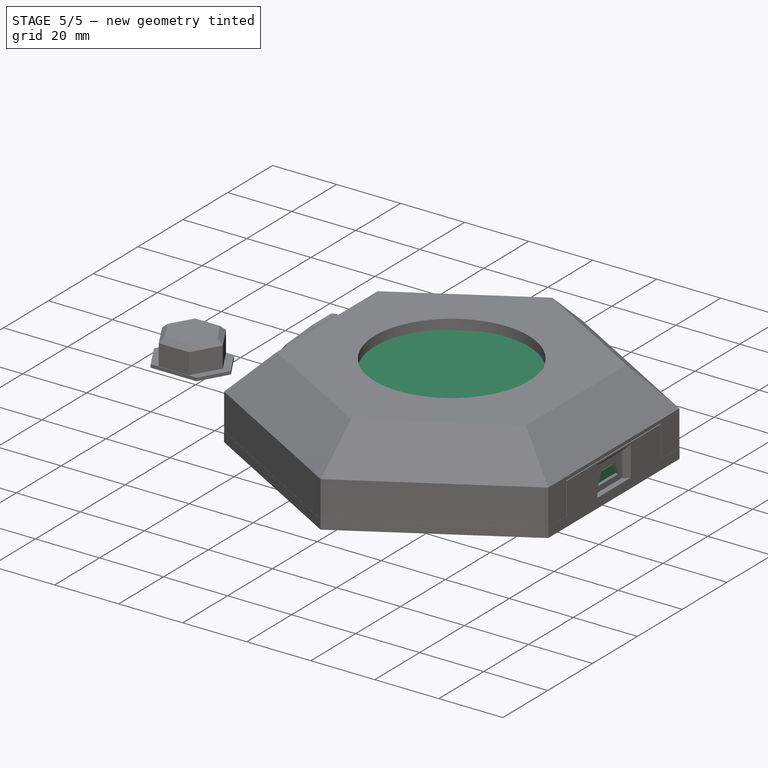
[diagram: stage 5 of 5 — iso view after this stage's code; geometry added in this stage tinted green]
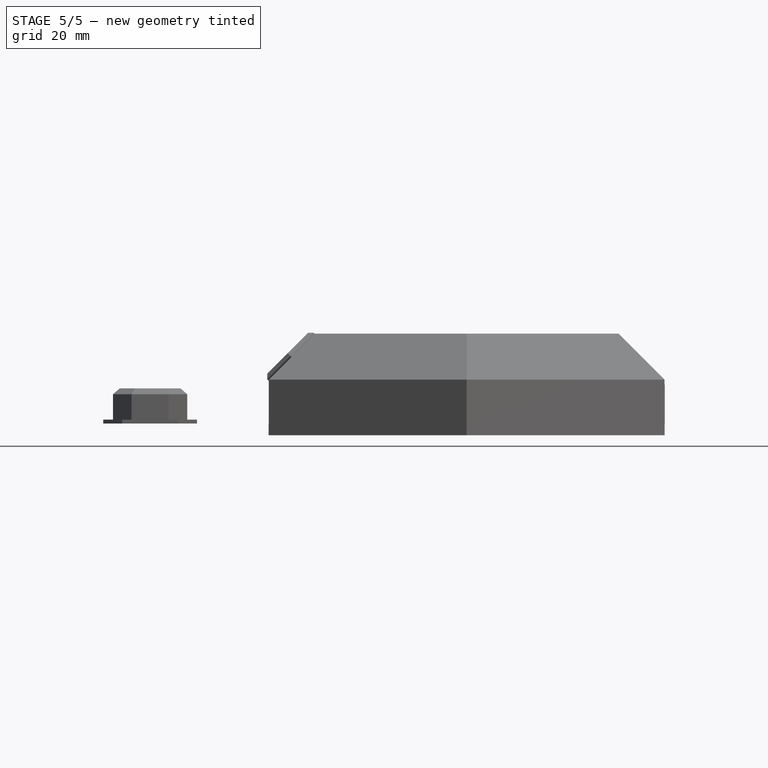
[diagram: stage 5 of 5 — front view after this stage's code; geometry added in this stage tinted green]
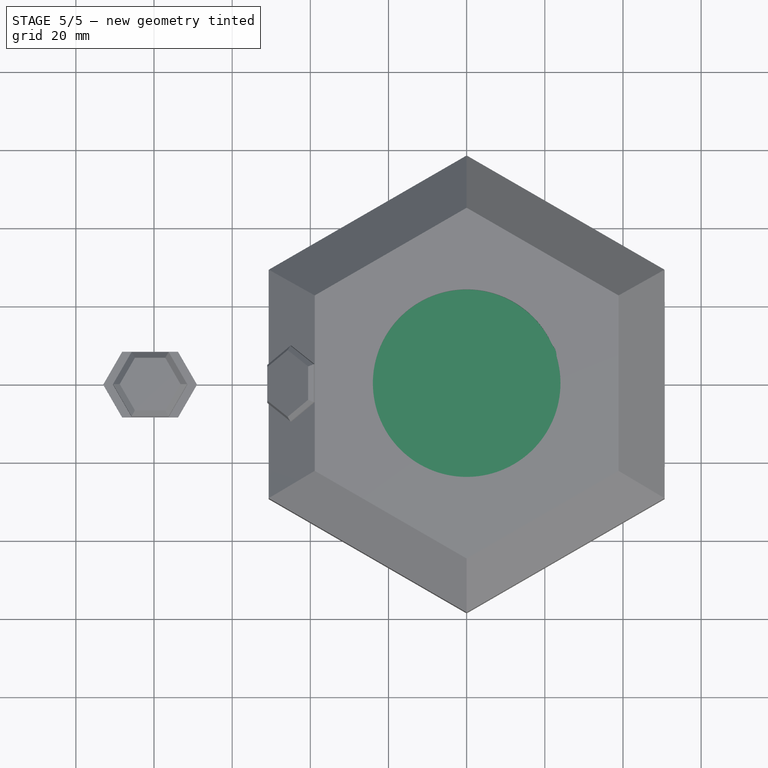
[diagram: stage 5 of 5 — top view after this stage's code; geometry added in this stage tinted green]
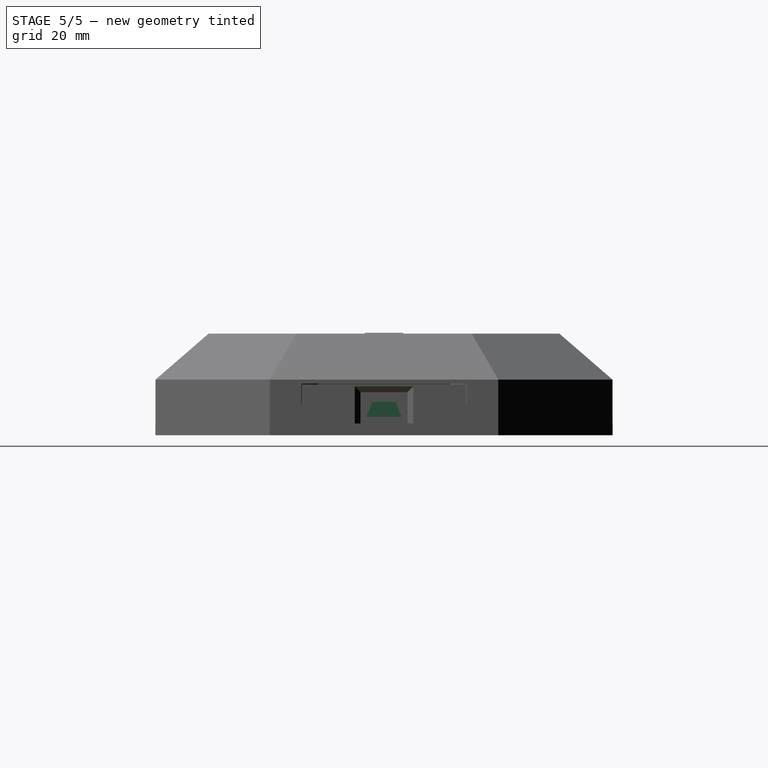
[diagram: stage 5 of 5 — right view after this stage's code; geometry added in this stage tinted green]
FEATURE [Part::Box] Box001  label="jaula"
  AttacherType = Attacher::AttachEngine3D
  Height = 3.8
  Length = 15
  Placement = pos=(7,-6,1) rot=(0,0,1;0rad)
  Width = 12
FEATURE [Part::Box] Box  label="esp12F"
  AttacherType = Attacher::AttachEngine3D
  Height = 1.31
  Length = 24.5
  Placement = pos=(0,-8,1) rot=(0,0,1;0rad)
  Width = 16
FEATURE [Sketcher::SketchObject] Sketch
  MapMode = 5
  Support = -> [XY_Plane]
  sketch-geometry (12):
    g0: LineSegment StartX=34.5 StartY=12.875 StartZ=0 EndX=2.375 EndY=12.875 EndZ=0
    g1: LineSegment StartX=2.375 StartY=12.875 StartZ=0 EndX=0 EndY=10.5 EndZ=0
    g2: LineSegment StartX=0 StartY=10.5 StartZ=0 EndX=0 EndY=-10.5 EndZ=0
    g3: LineSegment StartX=0 StartY=-10.5 StartZ=0 EndX=2.375 EndY=-12.875 EndZ=0
    g4: LineSegment StartX=2.375 StartY=-12.875 StartZ=0 EndX=27.15 EndY=-12.875 EndZ=0
    g5: LineSegment StartX=27.15 StartY=-12.875 StartZ=0 EndX=27.15 EndY=-10.625 EndZ=0
    g6: LineSegment StartX=27.15 StartY=-10.625 StartZ=0 EndX=34.5 EndY=-10.625 EndZ=0
    g7: LineSegment StartX=34.5 StartY=-10.625 StartZ=0 EndX=34.5 EndY=-4.5 EndZ=0
    g8: LineSegment StartX=34.5 StartY=-4.5 StartZ=0 EndX=33.13 EndY=-4.5 EndZ=0
    g9: LineSegment StartX=33.13 StartY=-4.5 StartZ=0 EndX=33.13 EndY=4.5 EndZ=0
    g10: LineSegment StartX=33.13 StartY=4.5 StartZ=0 EndX=34.5 EndY=4.5 EndZ=0
    g11: LineSegment StartX=34.5 StartY=4.5 StartZ=0 EndX=34.5 EndY=12.875 EndZ=0
  constraints (35):
    c: Horizontal(g0)
    c: Coincident(g0,g1)
    c: Coincident(g1,g2)
    c: Vertical(g2)
    c: Coincident(g2,g3)
    c: Coincident(g3,g4)
    c: Horizontal(g4)
    c: Coincident(g4,g5)
    c: Vertical(g5)
    c: Coincident(g5,g6)
    c: Horizontal(g6)
    c: Coincident(g6,g7)
    c: Vertical(g7)
    c: Coincident(g7,g8)
    c: Horizontal(g8)
    c: Coincident(g8,g9)
    c: Vertical(g9)
    c: Coincident(g9,g10)
    c: Coincident(g10,g11)
    c: Coincident(g11,g0)
    c: Vertical(g11)
    c: Symmetric(g1,g2,g-1)
    c: Symmetric(g8,g9,g-1)
    c: Horizontal(g10)
    c: Equal(g10,g8)
    c: Symmetric(g3,g0,g-1)
    c: Angle(g2,g1) = 2.35619
    c: DistanceY(g3,g0) = 25.75
    c: DistanceX(g1,g0) = 34.5
    c: DistanceY(g2,g1) = 21
    c: DistanceY(g5,g5) = 2.25
    c: DistanceX(g6,g6) = 7.35
    c: DistanceY(g8,g9) = 9
    c: DistanceX(g10,g10) = 1.37
    c: PointOnObject(g-1,g2)
FEATURE [Part::Box] Box002  label="Cubo"
  AttacherType = Attacher::AttachEngine3D
  Height = 2
  Length = 4.4
  Placement = pos=(29,-10.6,-2) rot=(0,0,1;0rad)
  Width = 2.2
FEATURE [Part::Cylinder] Cylinder  label="Cilindro"
  Angle = 360
  AttacherType = Attacher::AttachEngine3D
  Height = 10
  Placement = pos=(0,0,-3) rot=(0,0,1;0rad)
  Radius = 0.5
FEATURE [Part::FeaturePython] Array  # Draft array (typed FeaturePython)
  Angle = 360
  ArrayType = 0
  Axis = (0,0,1)
  Base = -> Cylinder
  Center = (0,0,0)
  Fuse = false
  IntervalAxis = (0,0,0)
  IntervalX = (2.54,0,0)
  IntervalY = (0,22,0)
  IntervalZ = (0,0,0)
  NumberPolar = 1
  NumberX = 8
  NumberY = 2
  NumberZ = 1
  Placement = pos=(7.35,-11,0) rot=(0,0,1;0rad)
FEATURE [Part::Box] Box003  label="Cubo001"
  AttacherType = Attacher::AttachEngine3D
  Height = 1.2
  Length = 2
  Placement = pos=(30.2,-11.6,-1.6) rot=(0,0,1;0rad)
  Width = 1
FEATURE [PartDesign::Pad] Pad
  Length = 1.6
  Length2 = 100
  Profile = -> Sketch
  Type = 0
FEATURE [PartDesign::Body] Body  label="placa base"
  Group = -> [Sketch,Pad]
  Origin = -> Origin
  Tip = -> Pad
FEATURE [Part::Box] Box004  label="led"
  AttacherType = Attacher::AttachEngine3D
  Height = 1.9
  Length = 1
  Placement = pos=(5.5,6,1) rot=(0,0,1;0rad)
  Width = 1.5
FEATURE [Part::Box] Box005  label="Cubo002"
  AttacherType = Attacher::AttachEngine3D
  Height = 2
  Length = 4
  Placement = pos=(22,-5.5,-1.45) rot=(0,0,1;0rad)
  Width = 10
FEATURE [Sketcher::SketchObject] Sketch001
  MapMode = 5
  Placement = pos=(0,0,0) rot=(0.57735,0.57735,0.57735;2.0944rad)
  Support = -> [YZ_Plane001]
  sketch-geometry (4):
    g0: LineSegment StartX=-2.725 StartY=-0.0219913 StartZ=0 EndX=2.725 EndY=-0.0219913 EndZ=0
    g1: LineSegment StartX=2.725 StartY=-0.0219913 StartZ=0 EndX=3.9 EndY=-2.82199 EndZ=0
    g2: LineSegment StartX=3.9 StartY=-2.82199 StartZ=0 EndX=-3.9 EndY=-2.82199 EndZ=0
    g3: LineSegment StartX=-3.9 StartY=-2.82199 StartZ=0 EndX=-2.725 EndY=-0.0219913 EndZ=0
  constraints (11):
    c: Coincident(g0,g1)
    c: Coincident(g1,g2)
    c: Coincident(g2,g3)
    c: Coincident(g3,g0)
    c: Horizontal(g0)
    c: Horizontal(g2)
    c: Symmetric(g0,g0,g-2)
    c: Symmetric(g2,g1,g-2)
    c: DistanceX(g2,g1) = 7.8
    c: DistanceX(g0,g0) = 5.45
    c: DistanceY(g1,g0) = 2.8
FEATURE [PartDesign::Pad] Pad001
  Length = 5.62
  Length2 = 100
  Placement = pos=(0,0,0) rot=(0.57735,0.57735,0.57735;2.0944rad)
  Profile = -> Sketch001
  Type = 0
FEATURE [PartDesign::Body] Body001  label="microusb"
  Group = -> [Sketch001,Pad001]
  Origin = -> Origin001
  Placement = pos=(28.85,0,0) rot=(0,0,1;0rad)
  Tip = -> Pad001
FEATURE [Part::Cut] Cut  label="placa base con agujeros"
  Base = -> Body
  Tool = -> Array
FEATURE [Part::MultiFuse] Fusion  label="wemos d1 mini"
  Placement = pos=(14,0,5) rot=(0,0,1;0rad)
  Shapes = -> [Body001,Cut,Box005,Box004,Box003,Box002,Box,Box001]
FEATURE [Part::Prism] Prism001  label="Prisma001"
  AttacherType = Attacher::AttachEngine3D
  Circumradius = 34.5
  Height = 20
  Placement = pos=(0,0,-3) rot=(0,0,1;0.523599rad)
  Polygon = 6
FEATURE [Part::Box] Box021  label="Cubo018"
  AttacherType = Attacher::AttachEngine3D
  Height = 4.5
  Length = 0.3
  Placement = pos=(6,4.8,-4) rot=(0,0,1;0rad)
  Width = 0.7
FEATURE [Part::Cylinder] Cylinder042  label="Cilindro018"
  Angle = 360
  AttacherType = Attacher::AttachEngine3D
  Height = 6
  Placement = pos=(3,3,0) rot=(0,0,1;0rad)
  Radius = 1.75
FEATURE [Part::Box] Box022  label="Cubo019"
  AttacherType = Attacher::AttachEngine3D
  Height = 4.5
  Length = 0.3
  Placement = pos=(-0.3,0.5,-4) rot=(0,0,1;0rad)
  Width = 0.7
FEATURE [Part::Box] Box023  label="Cubo020"
  AttacherType = Attacher::AttachEngine3D
  Height = 3.5
  Length = 6
  Width = 6
FEATURE [Part::Box] Box024  label="Cubo021"
  AttacherType = Attacher::AttachEngine3D
  Height = 4.5
  Length = 0.3
  Placement = pos=(6,0.5,-4) rot=(0,0,1;0rad)
  Width = 0.7
FEATURE [Part::Box] Box025  label="Cubo022"
  AttacherType = Attacher::AttachEngine3D
  Height = 4.5
  Length = 0.3
  Placement = pos=(-0.3,4.8,-4) rot=(0,0,1;0rad)
  Width = 0.7
FEATURE [Part::Fillet] Fillet004
  Base = -> Box023
  Edges = 4 edges r=0.2: [Edge1,Edge3,Edge5,Edge7]
FEATURE [Part::MultiFuse] Fusion004  label="pulsador"
  Placement = pos=(-43,-3,8) rot=(0,-1,0;0.785398rad)
  Shapes = -> [Fillet004,Box024,Box021,Box025,Box022,Cylinder042]
FEATURE [Part::Box] Box026  label="plaqueta pulsador"
  AttacherType = Attacher::AttachEngine3D
  Height = 1.6
  Length = 12
  Placement = pos=(-43,-10,4) rot=(0,-1,0;0.785398rad)
  Width = 20
FEATURE [Part::MultiFuse] Fusion005  label="plaqueta con pulsador"
  Placement = pos=(1.5,0,0) rot=(0,0,1;0rad)
  Shapes = -> [Fusion004,Box026]
FEATURE [Part::Cut] Cut014
  Base = -> Cylinder046
  Tool = -> Box029
FEATURE [Part::Cylinder] Cylinder047  label="Cilindro023"
  Angle = 360
  AttacherType = Attacher::AttachEngine3D
  Height = 15
  Placement = pos=(0,-46,0) rot=(0,0,1;0rad)
  Radius = 1.5
FEATURE [Part::MultiFuse] Fusion010
  Shapes = -> [Chamfer004,Chamfer003,Cut014]
FEATURE [Part::Cut] Cut015  label="tornillo"
  Base = -> Fusion010
  Tool = -> Cylinder047
FEATURE [Part::FeaturePython] Array001  label="soportes tornillos"  # Draft array (typed FeaturePython)
  Angle = 360
  ArrayType = 1
  Axis = (0,0,1)
  Base = -> Cut015
  Center = (0,0,0)
  Fuse = false
  IntervalAxis = (0,0,0)
  IntervalX = (1,0,0)
  IntervalY = (0,1,0)
  IntervalZ = (0,0,0)
  NumberPolar = 6
  NumberX = 2
  NumberY = 2
  NumberZ = 1
FEATURE [Part::MultiFuse] Fusion012  label="tapa superior"
  Shapes = -> [Array001,Cut016]
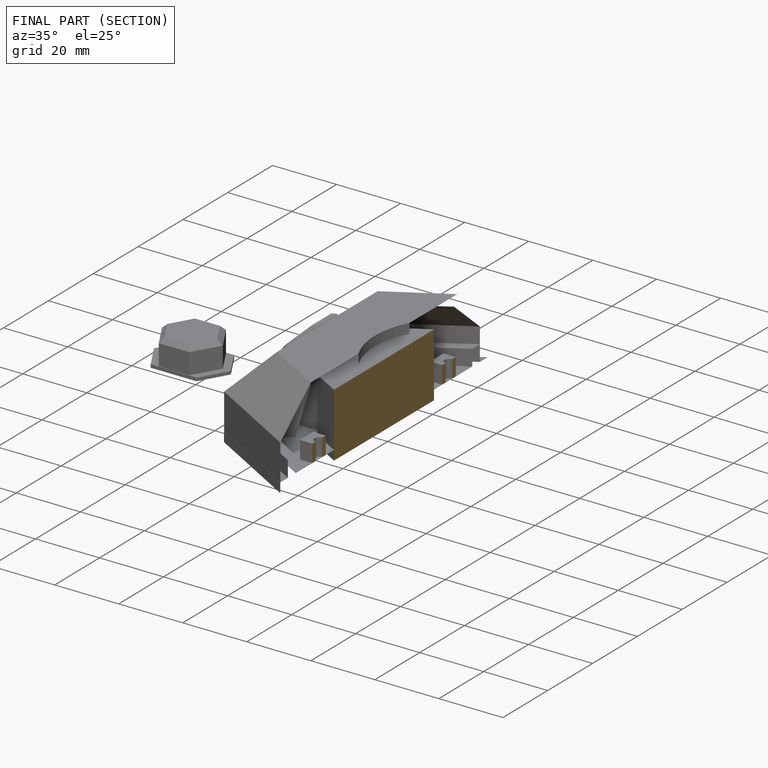
[diagram: finished part — half-section view (interior)]
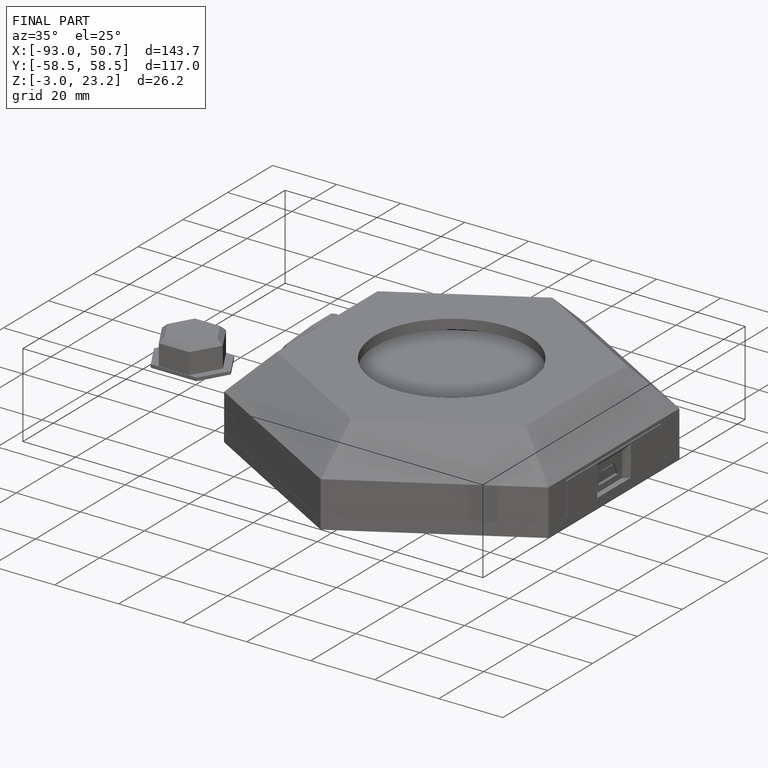
[diagram: finished part — iso view with bounding-box wireframe]
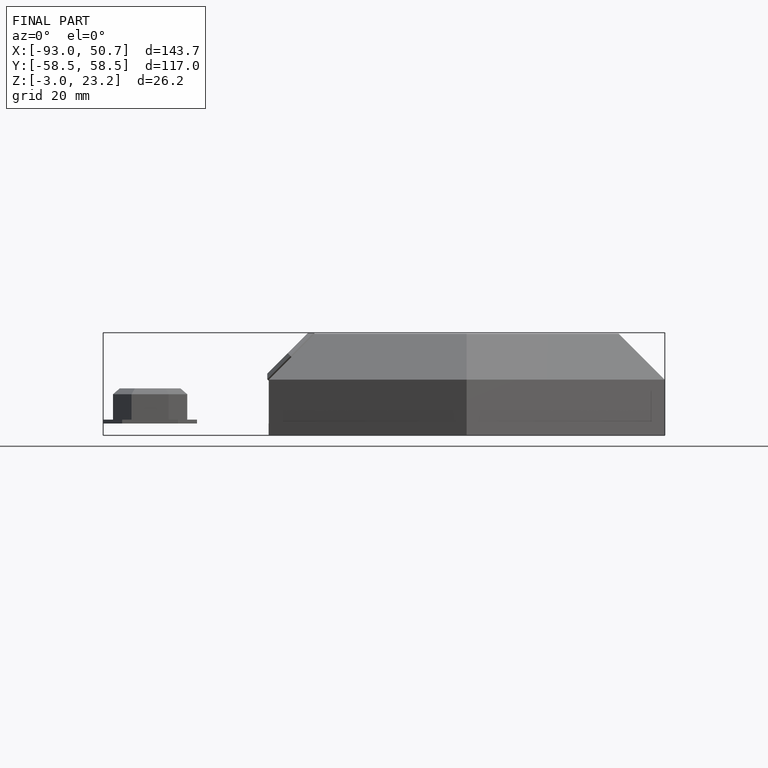
[diagram: finished part — front view with bounding-box wireframe]
